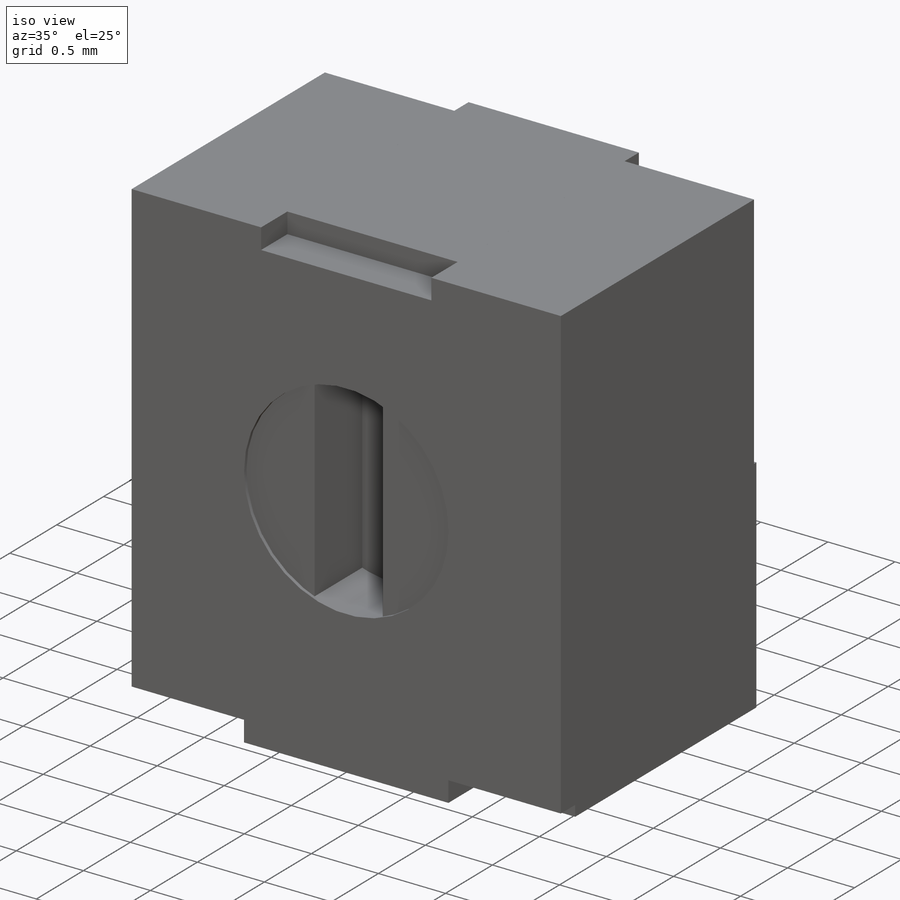
[diagram: iso view]
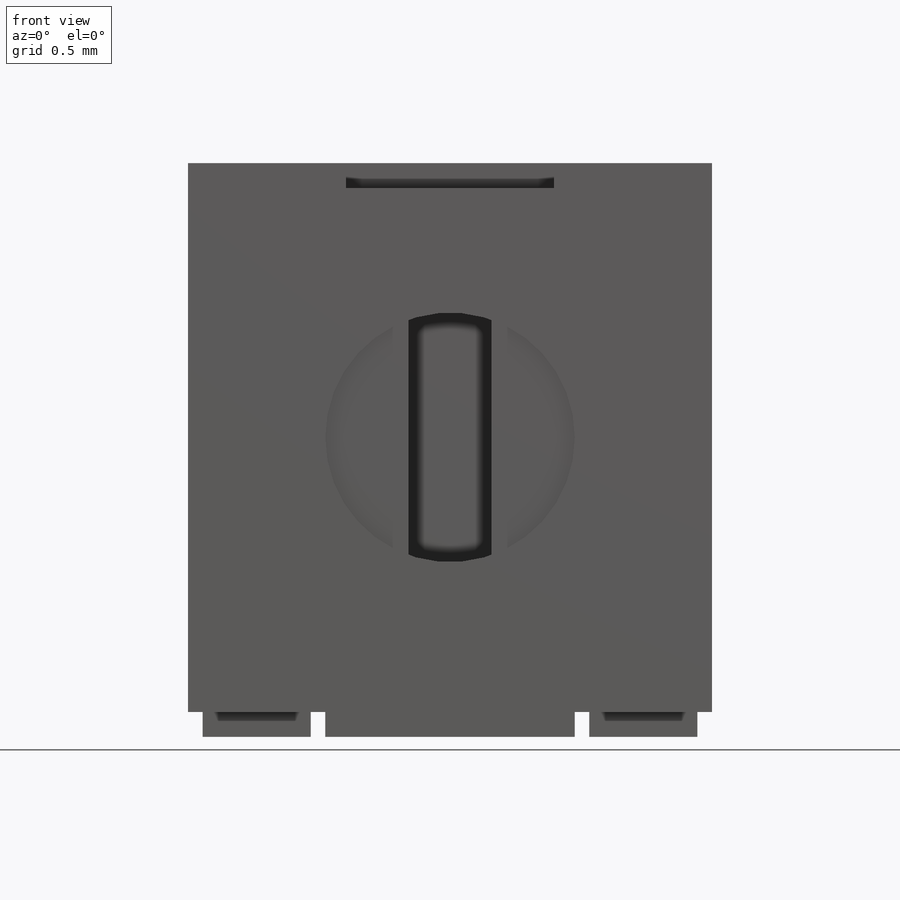
[diagram: front view]
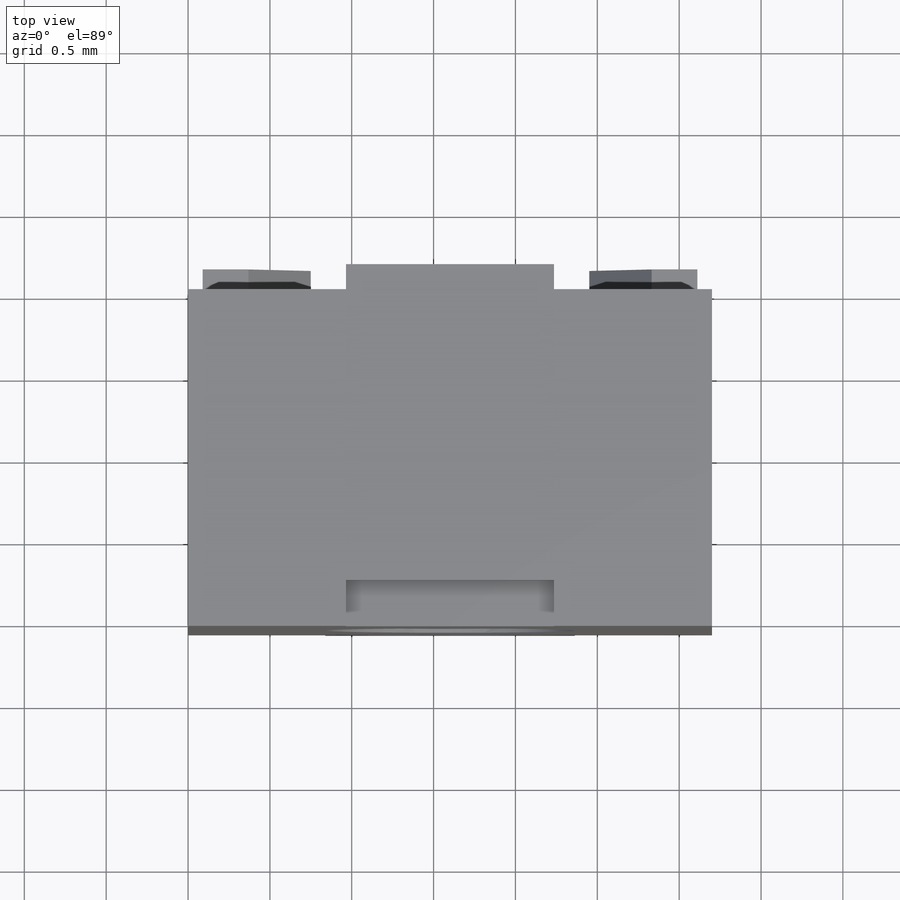
[diagram: top view]
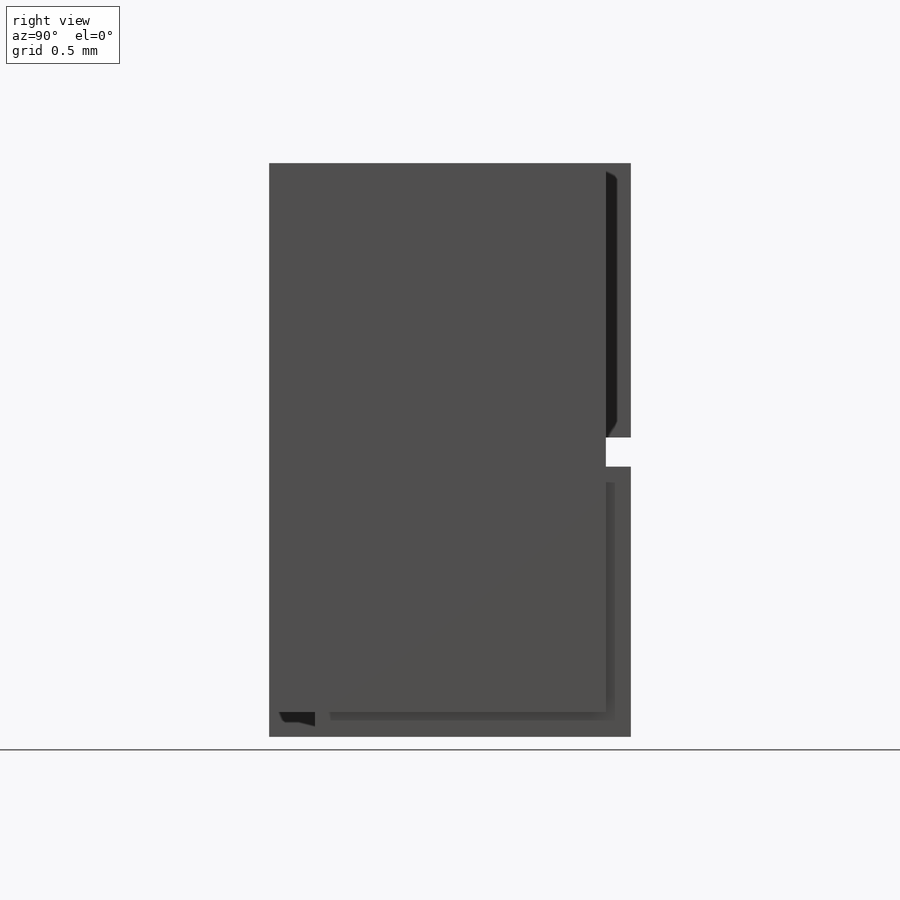
[diagram: right view]
SOLIDWORKS PART (.sldprt)
format: sldprt  version: not decoded by parser v0  size: 259,072 bytes
history: native  units: mm
features: sketch x5, extrude x2, cut_extrude x2, plane x2, material x1, chamfer x1, mirror x1 (+13 scaffold rows collapsed)
feature tree (27):
  scaffold x13  (default folders/planes/origin — collapsed)
  material  "Material <not specified>"
  sketch  "Sketch1"  dims[c1.D1=3.2004mm c1.D2=3.3528mm c1.D3=1.524mm c1.D4=0.1524mm c1.D5=0.8382mm c1.D6=0.8382mm c2.D5=1.27mm c2.D6=0.1524mm c2.D3=1.524mm c2.D4=0.1524mm]
  extrude  "Boss-Extrude1"  Depth=2.0574mm
  sketch  "Sketch2"  dims[D1=1.524mm]
  cut_extrude  "Cut-Extrude1"  Depth=0.0254mm
  sketch  "Sketch3"  dims[D2=0.762mm D3=0.762mm D1=0.508mm]
  cut_extrude  "Cut-Extrude2"  Depth=0.508mm
  plane  "Plane1"  Offset=1.6002mm
  plane  "Plane2"  Offset=0.4191mm
  sketch  "Sketch5"  dims[c1.D1=0.0762mm c1.D2=0.0mm c1.D3=1.778mm c1.D4=1.524mm c2.D1=0.1524mm c3.D1=1.27mm c3.D5=0.1524mm c3.D6=2.54mm c3.D7=5.0mm]
  sketch  "Sketch8"  dims[D1=1.778mm D2=1.4986mm]
  extrude  "Extrude-Thin6"  Depth=0.6604mm
  chamfer  "Chamfer1"  Distance=0.381mm Angle=55deg
  mirror  "Mirror1"
decode coverage: 10 of 11 modeling features carry decoded parameters
note: suppression state not decoded; provenance and decode notes live in map.json
